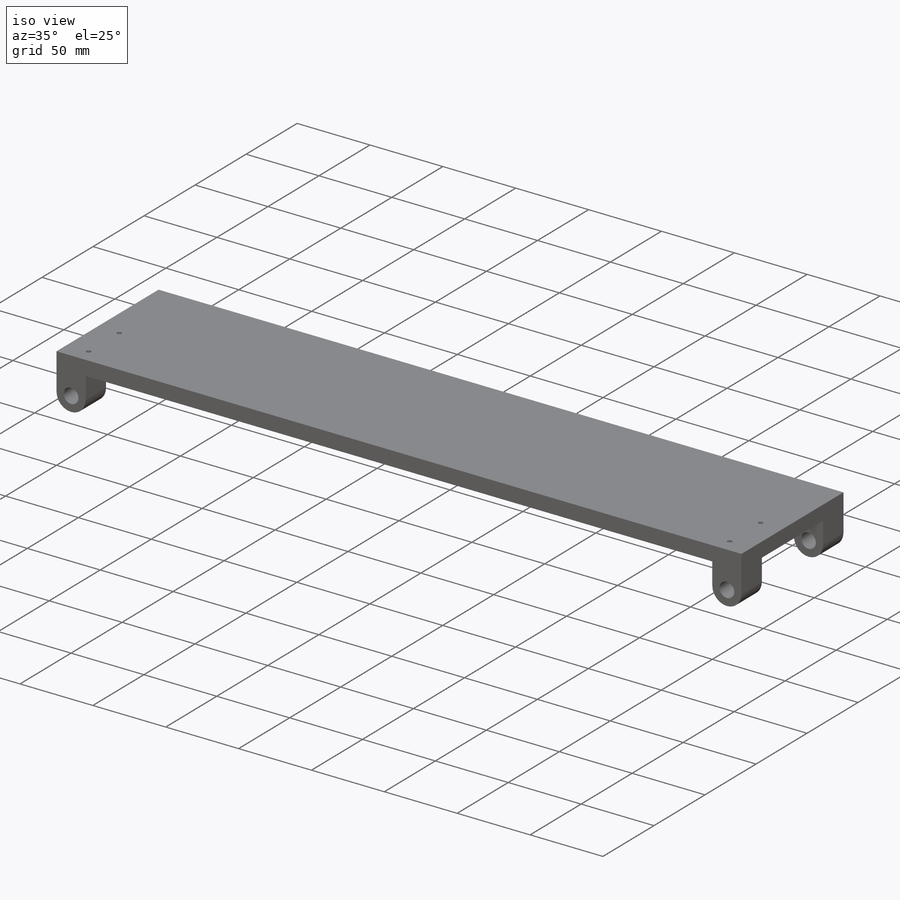
[diagram: iso view]
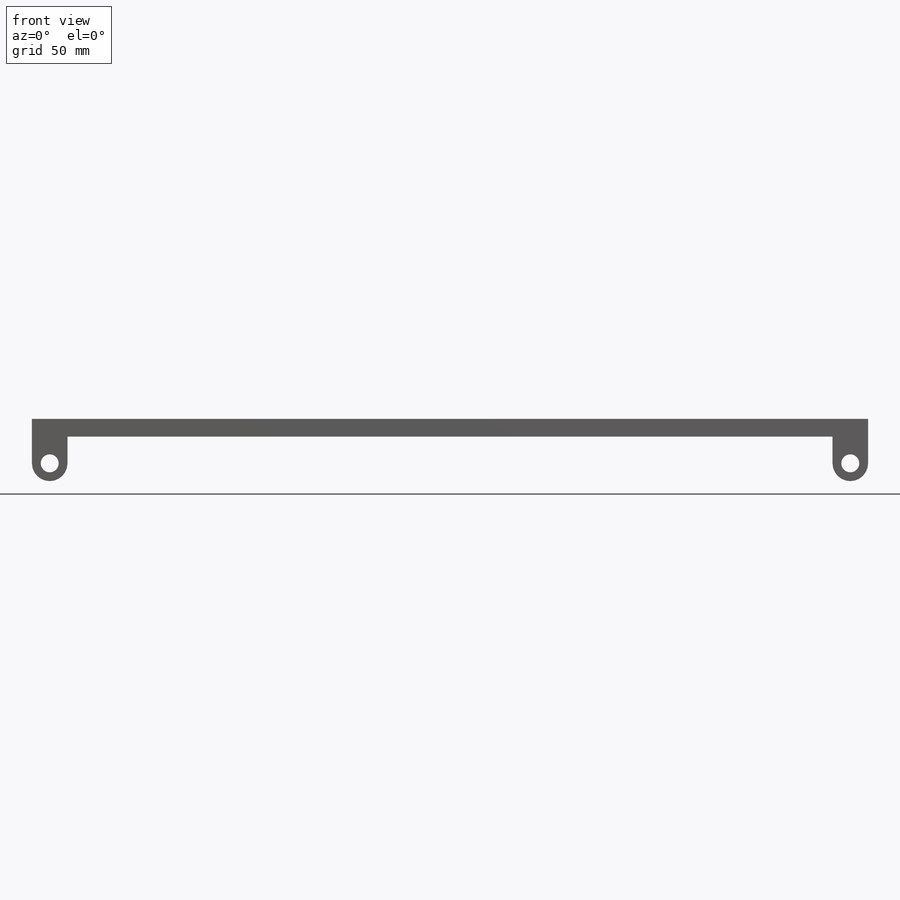
[diagram: front view]
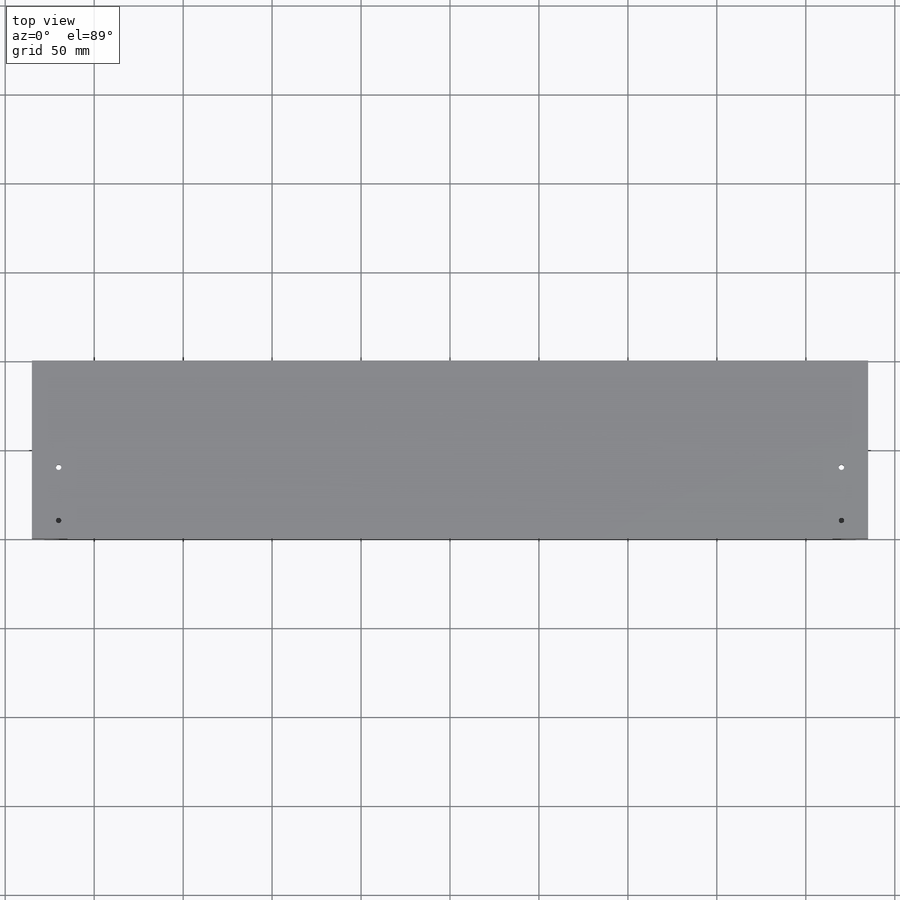
[diagram: top view]
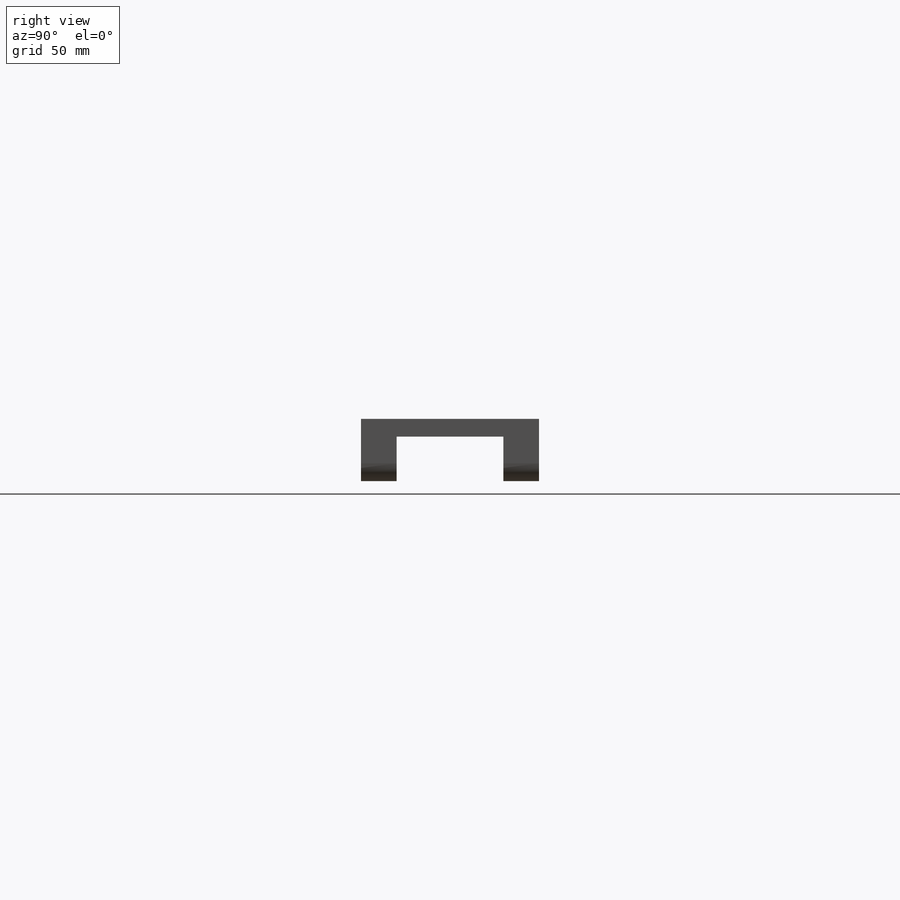
[diagram: right view]
SOLIDWORKS PART (.sldprt)
format: sldprt  version: not decoded by parser v0  size: 234,496 bytes
history: native  units: mm
features: sketch x5, cut_extrude x3, extrude x2, material x1, fillet x1 (+13 scaffold rows collapsed)
feature tree (25):
  scaffold x13  (default folders/planes/origin — collapsed)
  material  "Material <not specified>"
  sketch  "Sketch1"  dims[D1=470.0mm D2=100.0mm]
  extrude  "Boss-Extrude1"  Depth=10mm
  sketch  "Sketch2"  dims[D1=20.0mm]
  extrude  "Boss-Extrude2"  Depth=25mm
  fillet  "Fillet1"  Radius=10mm
  sketch  "Sketch4"  dims[D1=10.1mm]
  cut_extrude  "Cut-Extrude1"  [1 undecoded]
  sketch  "Sketch5"  dims[c1.D2=3.0mm c1.D4=3.0mm c1.D1=10.0mm c1.D3=30.0mm c1.D5=25.0mm c1.D6=25.0mm c2.D5=15.0mm c2.D6=15.0mm c2.D1=10.0mm]
  cut_extrude  "Cut-Extrude2"  Depth=10mm
  sketch  "Sketch8"  dims[c1.D1=60.0mm c1.D2=20.0mm c1.D3=19.5mm c2.D1=10.0mm c2.D2=20.0mm c2.D3=20.0mm c2.D4=25.0mm c3.D1=10.0mm c3.D2=20.0mm c3.D3=20.0mm]
  cut_extrude  "Cut-Extrude4"  [1 undecoded]
decode coverage: 9 of 11 modeling features carry decoded parameters
note: 2 parameter values undecoded
note: suppression state not decoded; provenance and decode notes live in map.json
